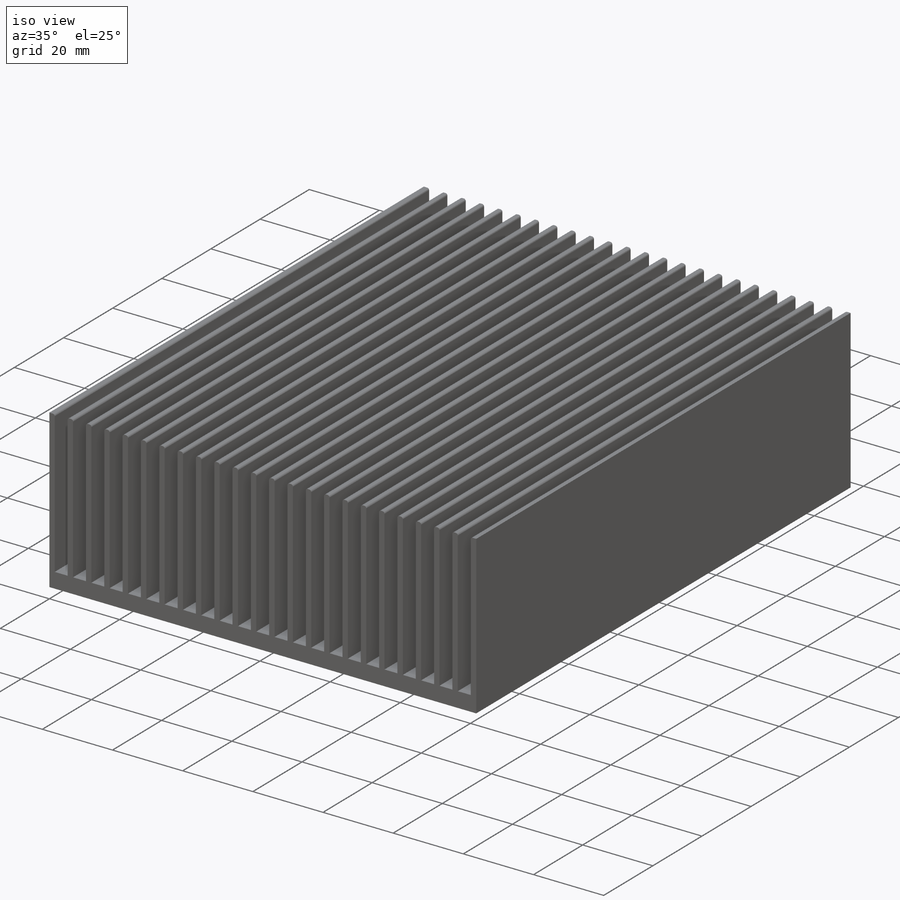
[diagram: iso view]
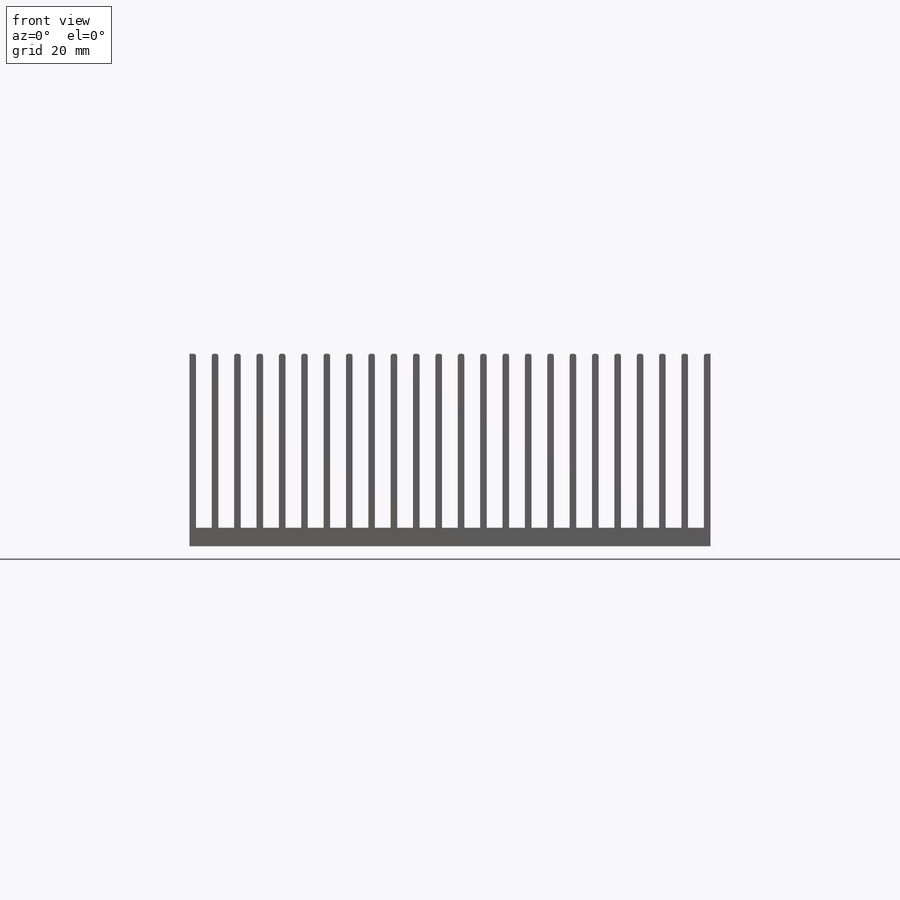
[diagram: front view]
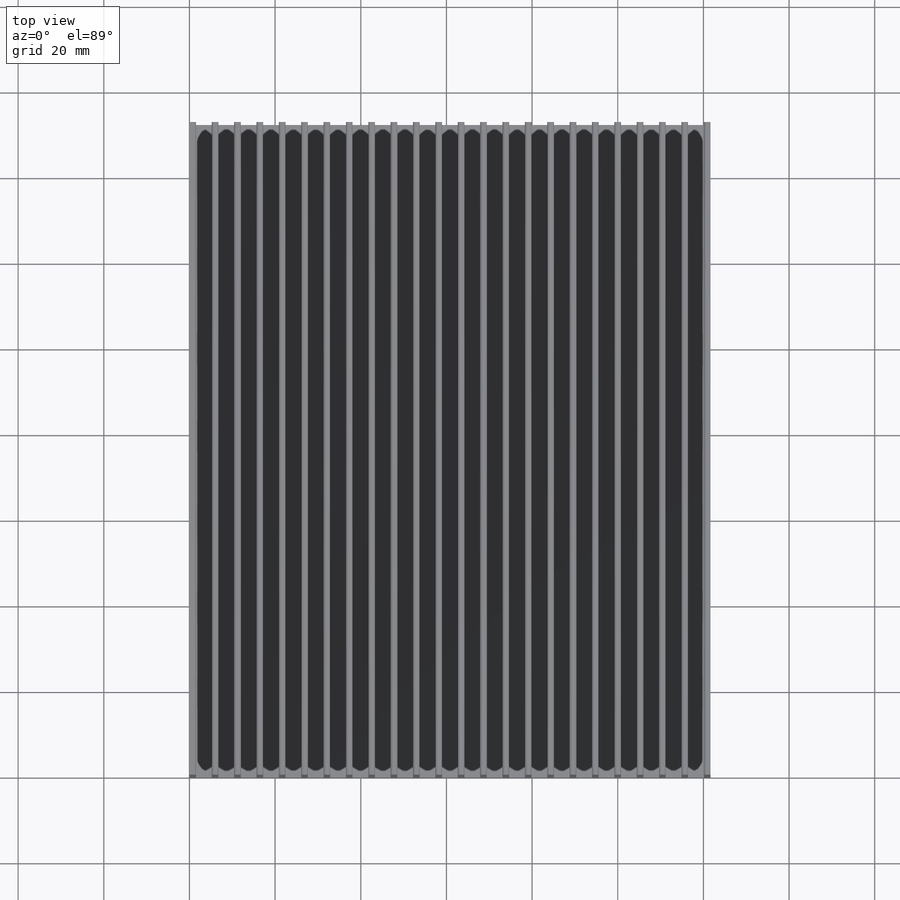
[diagram: top view]
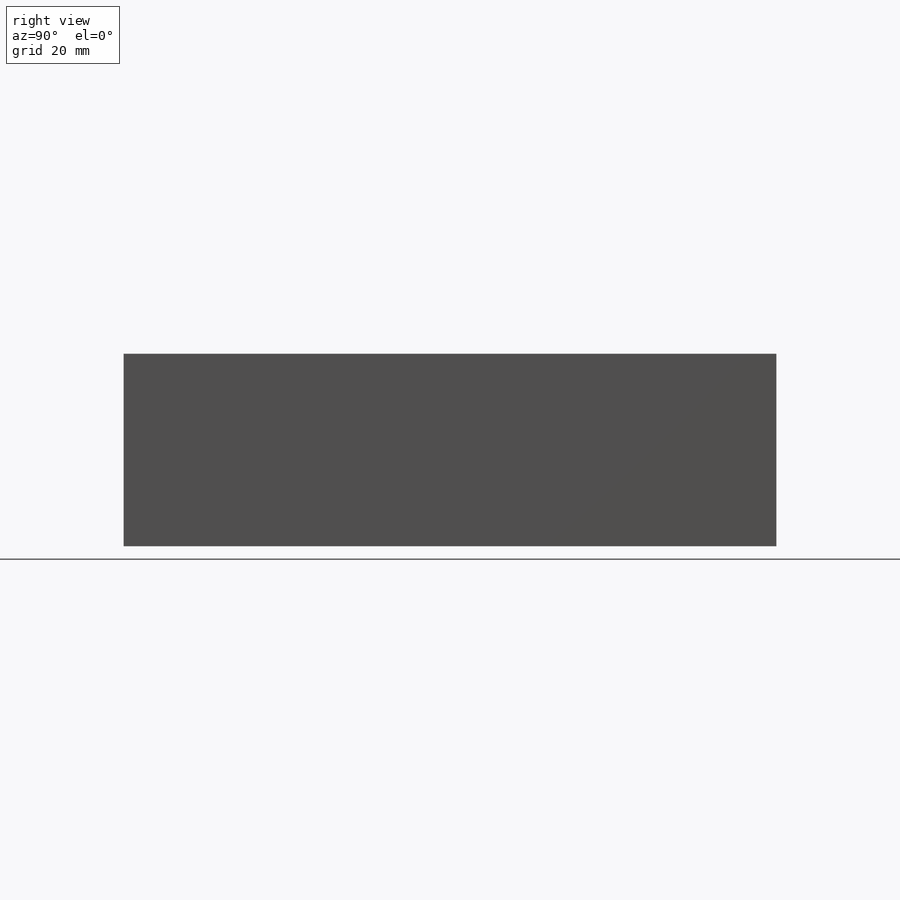
[diagram: right view]
SOLIDWORKS PART (.sldprt)
format: sldprt  version: not decoded by parser v0  size: 374,272 bytes
history: native  units: mm
features: sketch x5, cut_extrude x4, material x1, extrude x1, fillet x1, pattern_linear x1 (+11 scaffold rows collapsed)
feature tree (24):
  scaffold x11  (default folders/planes/origin — collapsed)
  material  "Material <not specified>"
  sketch  "Sketch1"  dims[D1=44.958mm D2=121.666mm]
  extrude  "Extrude1"  Depth=152.4mm
  sketch  "Sketch2"  dims[D1=4.318mm D2=1.524mm D3=3.683mm]
  cut_extrude  "Extrude2"  Depth=152.4mm
  fillet  "Fillet1"  Radius=0.508mm
  pattern_linear  "LPattern1"  Count1=23 Count2=1 Spacing1=5.22224mm Spacing2=2.54mm
  sketch  "Sketch4"  dims[c1.D1=3.175mm c1.D2=3.175mm c1.D3=33.02mm c1.D4=66.04mm c1.D5=26.162mm c1.D6=53.34mm c1.D7=~54.644286mm c1.D8=121.666mm c2.D7=60.833mm c2.D8=76.2mm c2.D3=34.671mm]
  cut_extrude  "Extrude3"  Depth=3.81mm
  sketch  "Sketch5"  dims[c1.D3=3.175mm c1.D4=3.175mm c1.D1=60.833mm c1.D2=76.2mm c2.D3=~27.65044mm c2.D5=34.925mm c2.D6=69.85mm c2.D7=43.815mm c2.D8=87.63mm c2.D1=43.18mm c2.D2=109.22mm c3.D5=25.908mm]
  cut_extrude  "Extrude4"  Depth=3.81mm
  sketch  "Sketch6"  dims[c1.D1=3.556mm c1.D2=3.556mm c1.D3=3.556mm c1.D4=3.556mm c1.D5=3.556mm c1.D6=3.556mm c2.D1=60.833mm c2.D2=76.2mm c2.D7=34.925mm c2.D8=69.85mm c2.D9=34.925mm c2.D10=69.85mm c2.D11=34.925mm c2.D12=69.85mm c2.D13=127.0mm c2.D14=127.0mm c2.D15=76.1492mm c2.D16=76.1492mm c2.D17=13.081mm c2.D18=13.081mm]
  cut_extrude  "Extrude5"  Depth=3.81mm
decode coverage: 12 of 12 modeling features carry decoded parameters
note: ~ marks probable driven/reference dimensions
note: suppression state not decoded; provenance and decode notes live in map.json
